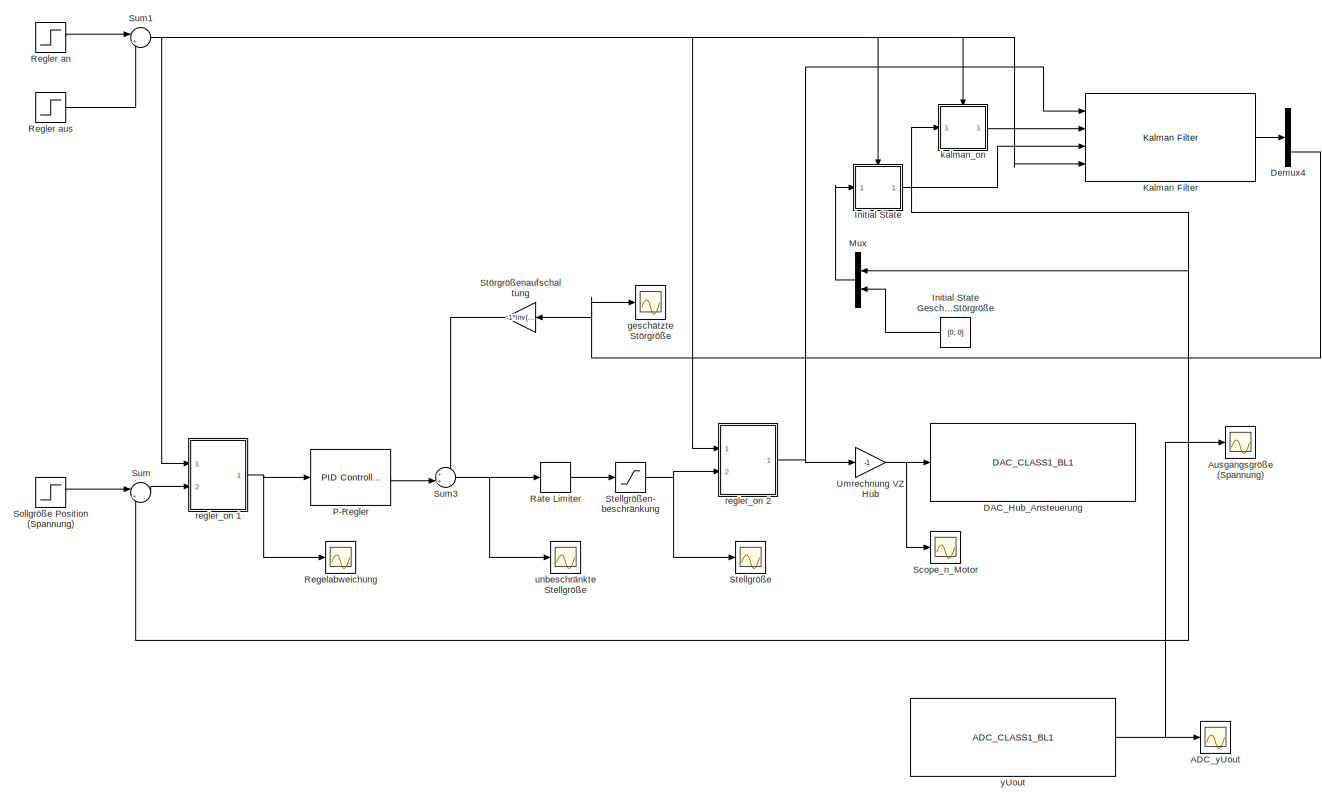
[diagram: root canvas - part 1/3, center side, full height]
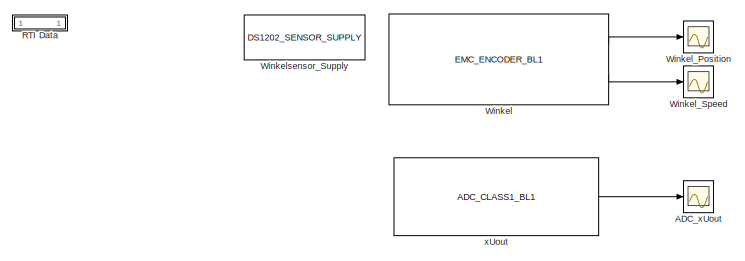
[diagram: root canvas - part 2/3, top left region]
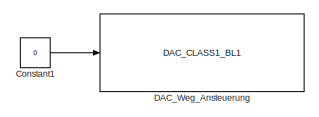
[diagram: root canvas - part 3/3, bottom right region]
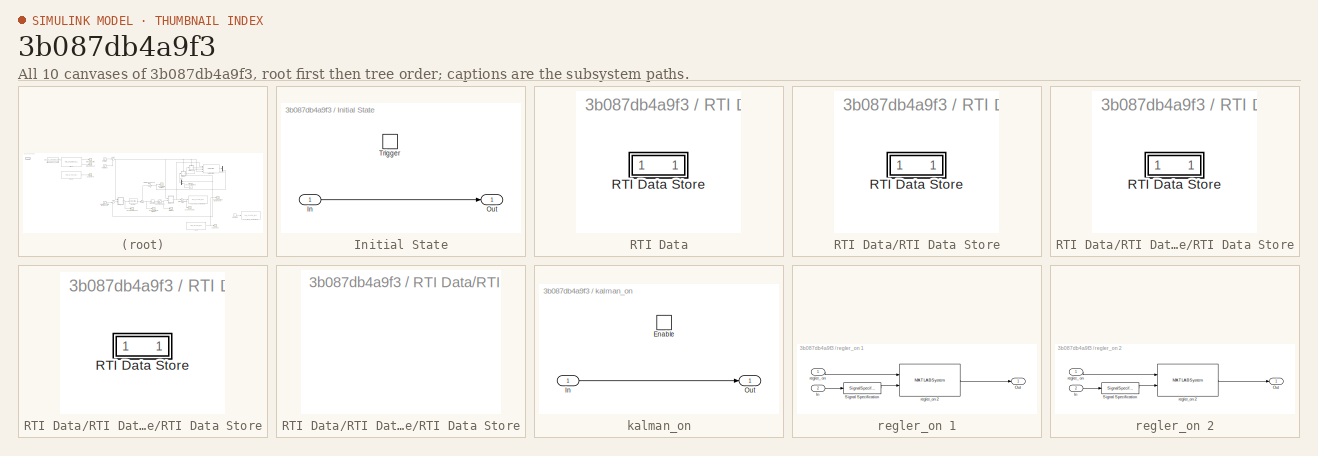
[diagram: thumbnail index - all 10 canvases of the model, root first then tree order]
MODEL slx_3b087db4a9f3
KIND model
CONFIG AbsTol = auto
CONFIG EnableMultiTasking = off
CONFIG FixedStep = 0.001
CONFIG MaxStep = auto
CONFIG MinStep = auto
CONFIG PostLoadFcn = , if any(exist('dsrtsu_mdlpostloadfcn', 'file') == [2, 3, 6]), try dsrtsu_mdlpostloadfcn('Execute', bdroot); catch fprintf('Error in PostLoadFcn (dsrtsu_mdlpostloadfcn) for model "%s":\n %s\n', bdroot, lasterr); end, end, \n
CONFIG RelTol = 1e-3
CONFIG SampleTimeConstraint = Unconstrained
CONFIG Solver = ode1
CONFIG SolverName = ode1
CONFIG StartTime = 0.0
CONFIG StopTime = Inf
BLOCK [Scope] ADC_xUout
  NumInputPorts = 1
  Ports = [1]
  ScopeSpecificationString = C++SS(StrPVP('SaveName','ScopeData4'),StrPVP('LimitDataPoints','on'),StrPVP('DataFormat','Array'),StrPVP('Decimation','1'),StrPVP('BlockParamSampleInput','off'))
BLOCK [Scope] ADC_yUout
  NumInputPorts = 1
  Ports = [1]
  ScopeSpecificationString = C++SS(StrPVP('SaveName','ScopeData5'),StrPVP('LimitDataPoints','on'),StrPVP('DataFormat','Array'),StrPVP('Decimation','1'),StrPVP('BlockParamSampleInput','off'),StrPVP('SaveName','ScopeData6'))
BLOCK [Scope] Ausgangsgröße (Spannung)
  NumInputPorts = 1
  Ports = [1]
  ScopeSpecificationString = C++SS(StrPVP('SaveName','ScopeData1'))
BLOCK [Constant] Constant1
  Value = 0
BLOCK [Reference] DAC_Hub_Ansteuerung  REF=rti1202lib_dac_class1/DAC_CLASS1_BL1
  Ports = [1]
  SourceBlock = rti1202lib_dac_class1/DAC_CLASS1_BL1
  SourceType = RTI
BLOCK [Reference] DAC_Weg_Ansteuerung  REF=rti1202lib_dac_class1/DAC_CLASS1_BL1
  Ports = [1]
  SourceBlock = rti1202lib_dac_class1/DAC_CLASS1_BL1
  SourceType = RTI
BLOCK [Demux] Demux4
  DisplayOption = bar
  Outputs = 3
  Ports = [1, 3]
BLOCK [SubSystem] Initial State
  Ports = [1, 1, 0, 1]
  RequestExecContextInheritance = off
  TreatAsAtomicUnit = on
  Variant = off
BLOCK [Constant] Initial State Geschwindigkeit, Störgröße
  Value = [0; 0]
  VectorParams1D = off
BLOCK [Inport] Initial State/In
  IconDisplay = Port number
BLOCK [Outport] Initial State/Out
  IconDisplay = Port number
BLOCK [TriggerPort] Initial State/Trigger
  Ports = []
  StatesWhenEnabling = held
  VariantControl = Variant
BLOCK [Reference] Kalman Filter  REF=ctrlSharedLib/Kalman Filter
  Ports = [4, 1]
  SourceBlock = ctrlSharedLib/Kalman Filter
  SourceType = ctrlKalmanFilter
BLOCK [Mux] Mux
  DisplayOption = bar
  Inputs = 2
  Ports = [2, 1]
BLOCK [Reference] P-Regler  REF=simulink/Continuous/PID Controller
  Ports = [1, 1]
  SourceBlock = simulink/Continuous/PID Controller
  SourceType = PID 1dof
BLOCK [SubSystem] RTI Data
  CopyFcn = if exist('rtidc'), try,  rtidc('DataHostBlockClbCopy', gcbh); catch, disp(['Warning: ''CopyFcn'' for RTI Data block failed: ' lasterr]); end, end,
  DeleteFcn = if exist('rtidc'), try,  rtidc('DataHostBlockClbDelete', gcbh); catch, disp(['Warning: ''DeleteFcn'' for RTI Data block failed: ' lasterr]); end, end,
  LoadFcn = if exist('rtidc'), try,  rtidc('DataHostBlockClbLoad', gcbh); catch, disp(['Warning: ''LoadFcn'' for RTI Data block failed: ' lasterr]); end, end,
  ModelCloseFcn = if exist('rtidc'), try,  rtidc('DataHostBlockClbModelClose', gcbh); catch, disp(['Warning: ''ModelCloseFcn'' for RTI Data block failed: ' lasterr]); end, end,
  NameChangeFcn = if exist('rtidc'), try,  rtidc('DataHostBlockClbNameChange', gcbh); catch, disp(['Warning: ''NameChangeFcn'' for RTI Data block failed: ' lasterr]); end, end,
  Ports = []
  PostSaveFcn = if exist('rtidc'), try,  rtidc('DataHostBlockClbPostSave', gcbh); catch, disp(['Warning: ''PostSaveFcn'' for RTI Data block failed: ' lasterr]); end, end,
  PreSaveFcn = if exist('rtidc'), try,  rtidc('DataHostBlockClbPreSave', gcbh); catch, disp(['Warning: ''PreSaveFcn'' for RTI Data block failed: ' lasterr]); end, end,
  RequestExecContextInheritance = off
  Tag = struct('RTIDataServer',struct('RTIDataServerVs','2','RTIModelDescription','struct(''main'',''aktoren_sensoren_ansprechen'',''sub'','''',''isMp'',0)'))
  Variant = off
BLOCK [SubSystem] RTI Data/RTI Data Store
  Ports = []
  RequestExecContextInheritance = off
  Tag = struct('private',struct('version',struct('dsVer',uint32(2),'dsVerCreation',uint32(2),'RTI',struct('ver','7.7','type','RTI1202')),'access',struct('type','Model','isPerm',1,'created',['24-Nov-2020 10:16:32'],'modified',['02-Dec-2020 16:46:45'],'location','')),'public',struct('main',struct('data',[]),'sub',struct('name',{{'aktoren_sensoren_ansprechen'}},'data',{{struct('TH',struct('thTaskInfo',struct...<+904ch>
  Variant = off
BLOCK [SubSystem] RTI Data/RTI Data Store/RTI Data Store
  Ports = []
  RequestExecContextInheritance = off
  Variant = off
BLOCK [SubSystem] RTI Data/RTI Data Store/RTI Data Store/RTI Data Store
  Ports = []
  RequestExecContextInheritance = off
  Variant = off
BLOCK [SubSystem] RTI Data/RTI Data Store/RTI Data Store/RTI Data Store/RTI Data Store
  Ports = []
  RequestExecContextInheritance = off
  Variant = off
BLOCK [RateLimiter] Rate Limiter
  FallingSlewLimit = -0.23024
  RisingSlewLimit = 0.23024
  SampleTimeMode = inherited
BLOCK [Scope] Regelabweichung
  NumInputPorts = 1
  Ports = [1]
  ScopeSpecificationString = C++SS(StrPVP('SaveName','ScopeData2'))
BLOCK [Step] Regler an
  SampleTime = 0
  Time = 2
BLOCK [Step] Regler aus
  After = -1
  SampleTime = 0
  Time = 30
BLOCK [Scope] Scope_n_Motor
  NumInputPorts = 1
  Ports = [1]
  ScopeSpecificationString = C++SS(StrPVP('SaveName','ScopeData3'),StrPVP('LimitDataPoints','on'),StrPVP('DataFormat','Array'),StrPVP('Decimation','1'),StrPVP('BlockParamSampleInput','off'))
BLOCK [Step] Sollgröße Position (Spannung)
  After = 0.5
  SampleTime = 0
  Time = 0
BLOCK [Scope] Stellgröße
  NumInputPorts = 1
  Ports = [1]
  ScopeSpecificationString = C++SS(StrPVP('SaveName','ScopeData3'))
BLOCK [Saturate] Stellgrößen- beschränkung
  InputPortMap = u0
  LowerLimit = -1
  Ports = [1, 1]
  UpperLimit = 1
BLOCK [Gain] Störgrößenaufschaltung
  Gain = -1*inv(matB_hub'*matB_hub)*matB_hub'*matE_hub
  Multiplication = Matrix(K*u)
  OutDataTypeStr = Inherit: Inherit via internal rule
  ParamDataTypeStr = Inherit: Inherit via internal rule
  SaturateOnIntegerOverflow = off
BLOCK [Sum] Sum
  IconShape = round
  InputSameDT = off
  Inputs = |+-
  OutDataTypeStr = Inherit: Inherit via internal rule
  Ports = [2, 1]
  SaturateOnIntegerOverflow = off
BLOCK [Sum] Sum1
  IconShape = round
  InputSameDT = off
  Inputs = |++
  OutDataTypeStr = Inherit: Inherit via internal rule
  Ports = [2, 1]
  SaturateOnIntegerOverflow = off
BLOCK [Sum] Sum3
  IconShape = round
  InputSameDT = off
  Inputs = ++|
  OutDataTypeStr = Inherit: Inherit via internal rule
  Ports = [2, 1]
  SaturateOnIntegerOverflow = off
BLOCK [Gain] Umrechnung VZ Hub
  Gain = -1
  OutDataTypeStr = Inherit: Inherit via internal rule
  ParamDataTypeStr = Inherit: Inherit via internal rule
  SaturateOnIntegerOverflow = off
BLOCK [Reference] Winkel  REF=rtiemclib/EMC_ENCODER_BL1
  Ports = [0, 2]
  SourceBlock = rtiemclib/EMC_ENCODER_BL1
  SourceType = RTI
BLOCK [Scope] Winkel_Position
  NumInputPorts = 1
  Ports = [1]
  ScopeSpecificationString = C++SS(StrPVP('SaveName','ScopeData'),StrPVP('LimitDataPoints','on'),StrPVP('DataFormat','Array'),StrPVP('Decimation','1'),StrPVP('BlockParamSampleInput','off'))
BLOCK [Scope] Winkel_Speed
  NumInputPorts = 1
  Ports = [1]
  ScopeSpecificationString = C++SS(StrPVP('SaveName','ScopeData'),StrPVP('SaveName','ScopeData1'),StrPVP('LimitDataPoints','on'),StrPVP('DataFormat','Array'),StrPVP('Decimation','1'),StrPVP('BlockParamSampleInput','off'))
BLOCK [Reference] Winkelsensor_Supply  REF=rti1202lib_base/DS1202_SENSOR_SUPPLY
  Ports = []
  SourceBlock = rti1202lib_base/DS1202_SENSOR_SUPPLY
  SourceType = RTI
BLOCK [Scope] geschätzte Störgröße
  NumInputPorts = 1
  Ports = [1]
  ScopeSpecificationString = C++SS(StrPVP('SaveName','ScopeData4'))
BLOCK [SubSystem] kalman_on
  Ports = [1, 1, 1]
  RequestExecContextInheritance = off
  TreatAsAtomicUnit = on
  Variant = off
BLOCK [EnablePort] kalman_on/Enable
  Ports = []
BLOCK [Inport] kalman_on/In
  IconDisplay = Port number
BLOCK [Outport] kalman_on/Out
  IconDisplay = Port number
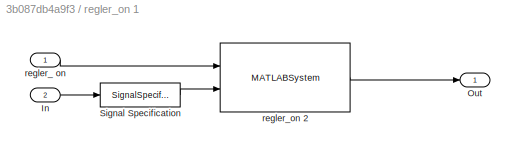
BLOCK [SubSystem] regler_on 1
  Ports = [2, 1]
  RequestExecContextInheritance = off
  Variant = off
BLOCK [Inport] regler_on 1/In
  IconDisplay = Port number
  Port = 2
BLOCK [Outport] regler_on 1/Out
  IconDisplay = Port number
BLOCK [SignalSpecification] regler_on 1/Signal Specification
  Dimensions = 1
BLOCK [Inport] regler_on 1/regler_ on
  IconDisplay = Port number
BLOCK [MATLABSystem] regler_on 1/regler_on 2
  MaskDisplay = disp('regler_switch_1');\nport_label('input',1,'regler_on');\nport_label('input',2,'input');\nport_label('output',1,'y');
  MaskType = regler_switch_1
  Ports = [2, 1]
  SimulateUsing = Code generation
  System = regler_switch_1
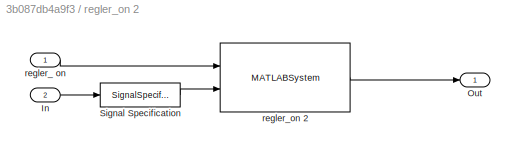
BLOCK [SubSystem] regler_on 2
  Ports = [2, 1]
  RequestExecContextInheritance = off
  Variant = off
BLOCK [Inport] regler_on 2/In
  IconDisplay = Port number
  Port = 2
BLOCK [Outport] regler_on 2/Out
  IconDisplay = Port number
BLOCK [SignalSpecification] regler_on 2/Signal Specification
  Dimensions = 1
BLOCK [Inport] regler_on 2/regler_ on
  IconDisplay = Port number
BLOCK [MATLABSystem] regler_on 2/regler_on 2
  MaskDisplay = disp('regler_switch_1');\nport_label('input',1,'regler_on');\nport_label('input',2,'input');\nport_label('output',1,'y');
  MaskType = regler_switch_1
  Ports = [2, 1]
  SimulateUsing = Code generation
  System = regler_switch_1
BLOCK [Scope] unbeschränkte Stellgröße
  NumInputPorts = 1
  Ports = [1]
  ScopeSpecificationString = C++SS(StrPVP('SaveName','ScopeData5'))
BLOCK [Reference] xUout  REF=rti1202lib_adc_class1/ADC_CLASS1_BL1
  Ports = [0, 1]
  SourceBlock = rti1202lib_adc_class1/ADC_CLASS1_BL1
  SourceType = RTI
BLOCK [Reference] yUout  REF=rti1202lib_adc_class1/ADC_CLASS1_BL1
  Ports = [0, 1]
  SourceBlock = rti1202lib_adc_class1/ADC_CLASS1_BL1
  SourceType = RTI
LINE Constant1:1 -> DAC_Weg_Ansteuerung:1
NET Demux4:3 -> Störgrößenaufschaltung:1, geschätzte Störgröße:1
LINE Initial State Geschwindigkeit, Störgröße:1 -> Mux:2
LINE Initial State/In:1 -> Initial State/Out:1
LINE Initial State:1 -> Kalman Filter:3
LINE Kalman Filter:1 -> Demux4:1
LINE Mux:1 -> Initial State:1
LINE P-Regler:1 -> Sum3:2
LINE Rate Limiter:1 -> Stellgrößen- beschränkung:1
LINE Regler an:1 -> Sum1:1
LINE Regler aus:1 -> Sum1:2
LINE Sollgröße Position (Spannung):1 -> Sum:1
NET Stellgrößen- beschränkung:1 -> Stellgröße:1, regler_on 2:2
LINE Störgrößenaufschaltung:1 -> Sum3:1
NET Sum1:1 -> Initial State:trigger, Kalman Filter:4, kalman_on:enable, regler_on 1:1, regler_on 2:1
NET Sum3:1 -> Rate Limiter:1, unbeschränkte Stellgröße:1
LINE Sum:1 -> regler_on 1:2
NET Umrechnung VZ Hub:1 -> DAC_Hub_Ansteuerung:1, Scope_n_Motor:1
LINE Winkel:1 -> Winkel_Position:1
LINE Winkel:2 -> Winkel_Speed:1
LINE kalman_on/In:1 -> kalman_on/Out:1
LINE kalman_on:1 -> Kalman Filter:2
LINE regler_on 1/In:1 -> regler_on 1/Signal Specification:1
LINE regler_on 1/Signal Specification:1 -> regler_on 1/regler_on 2:2
LINE regler_on 1/regler_ on:1 -> regler_on 1/regler_on 2:1
LINE regler_on 1/regler_on 2:1 -> regler_on 1/Out:1
NET regler_on 1:1 -> P-Regler:1, Regelabweichung:1
LINE regler_on 2/In:1 -> regler_on 2/Signal Specification:1
LINE regler_on 2/Signal Specification:1 -> regler_on 2/regler_on 2:2
LINE regler_on 2/regler_ on:1 -> regler_on 2/regler_on 2:1
LINE regler_on 2/regler_on 2:1 -> regler_on 2/Out:1
NET regler_on 2:1 -> Kalman Filter:1, Umrechnung VZ Hub:1
LINE xUout:1 -> ADC_xUout:1
NET yUout:1 -> ADC_yUout:1, Ausgangsgröße (Spannung):1, Mux:1, Sum:2, kalman_on:1
note: NET lines group one-source signal fan-out (src -> all destinations, sorted); 1:1 wires keep LINE
